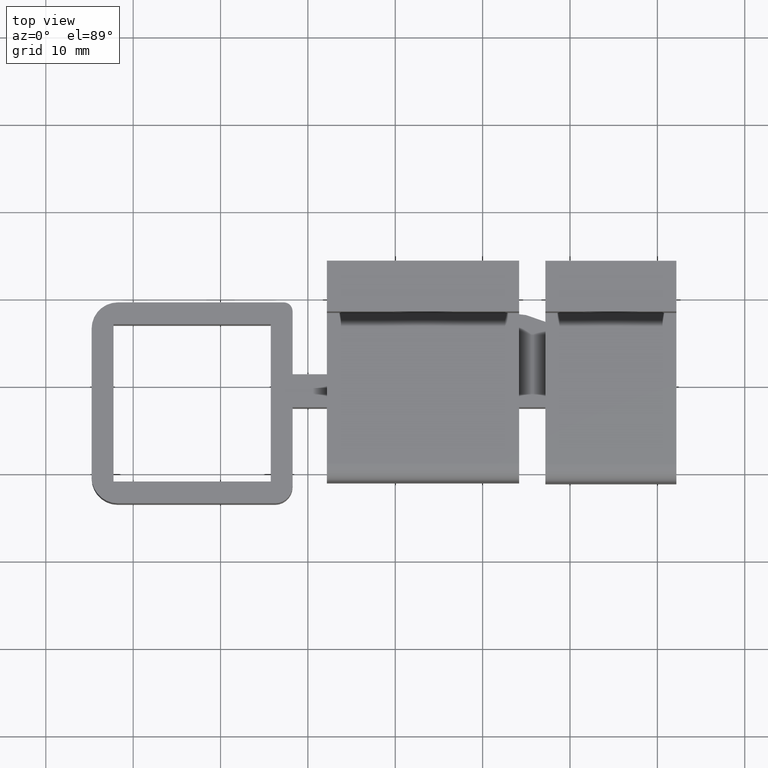
[diagram: clean part render]
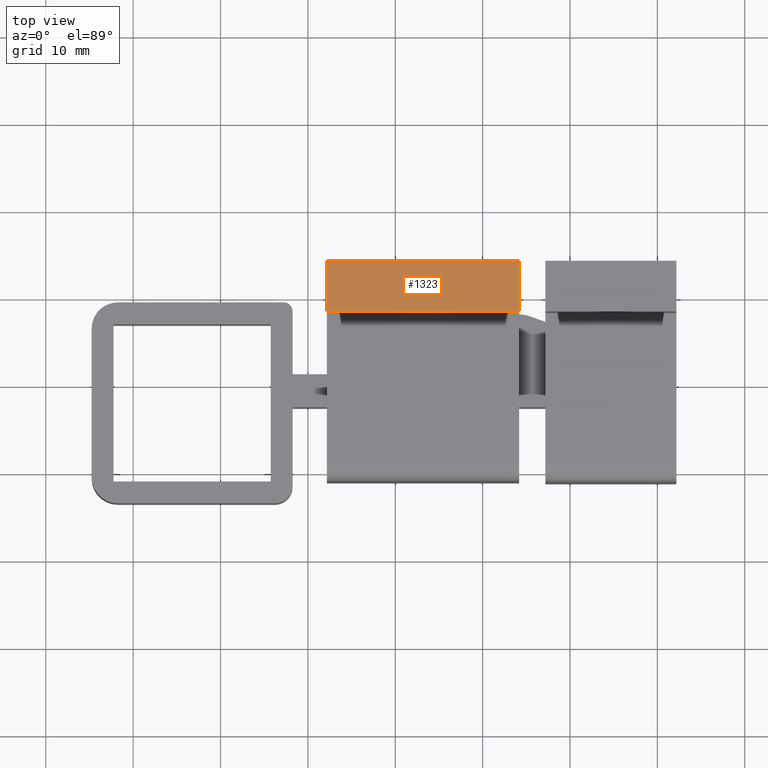
[diagram: same view with one face highlighted and labeled with its STEP entity id]
A machine part, top view. The second image highlights one B-rep face of the part: STEP entity #1323.
In plain terms, the highlighted planar face has unit normal (-0, -0, 1).
Its self-contained STEP definition (entity closure, byte-faithful):
#74=PLANE('',#1486);
#130=FACE_OUTER_BOUND('',#206,.T.);
#206=EDGE_LOOP('',(#1086,#1087,#1088,#1089));
#300=LINE('',#2074,#448);
#317=LINE('',#2116,#465);
#332=LINE('',#2145,#480);
#333=LINE('',#2147,#481);
#448=VECTOR('',#1685,10.);
#465=VECTOR('',#1718,10.);
#480=VECTOR('',#1743,10.);
#481=VECTOR('',#1746,10.);
#634=VERTEX_POINT('',#2071);
#635=VERTEX_POINT('',#2073);
#651=VERTEX_POINT('',#2113);
#652=VERTEX_POINT('',#2115);
#779=EDGE_CURVE('',#635,#634,#300,.T.);
#800=EDGE_CURVE('',#652,#651,#317,.T.);
#816=EDGE_CURVE('',#651,#635,#332,.T.);
#817=EDGE_CURVE('',#634,#652,#333,.T.);
#1086=ORIENTED_EDGE('',*,*,#800,.T.);
#1087=ORIENTED_EDGE('',*,*,#816,.T.);
#1088=ORIENTED_EDGE('',*,*,#779,.T.);
#1089=ORIENTED_EDGE('',*,*,#817,.T.);
#1323=ADVANCED_FACE('',(#130),#74,.T.);
#1486=AXIS2_PLACEMENT_3D('',#2146,#1744,#1745);
#1685=DIRECTION('',(0.,0.,-1.));
#1718=DIRECTION('',(0.,0.,1.));
#1743=DIRECTION('',(0.,-1.,0.));
#1744=DIRECTION('center_axis',(1.,0.,0.));
#1745=DIRECTION('ref_axis',(0.,0.,-1.));
#1746=DIRECTION('',(0.,1.,0.));
#2071=CARTESIAN_POINT('',(21.,0.,3.552714E-15));
#2073=CARTESIAN_POINT('',(21.,0.,5.8));
#2074=CARTESIAN_POINT('',(21.,0.,5.8));
#2113=CARTESIAN_POINT('',(21.,22.,5.8));
#2115=CARTESIAN_POINT('',(21.,22.,3.552714E-15));
#2116=CARTESIAN_POINT('',(21.,22.,3.552714E-15));
#2145=CARTESIAN_POINT('',(21.,22.,5.8));
#2146=CARTESIAN_POINT('Origin',(21.,11.,2.9));
#2147=CARTESIAN_POINT('',(21.,0.,3.552714E-15));